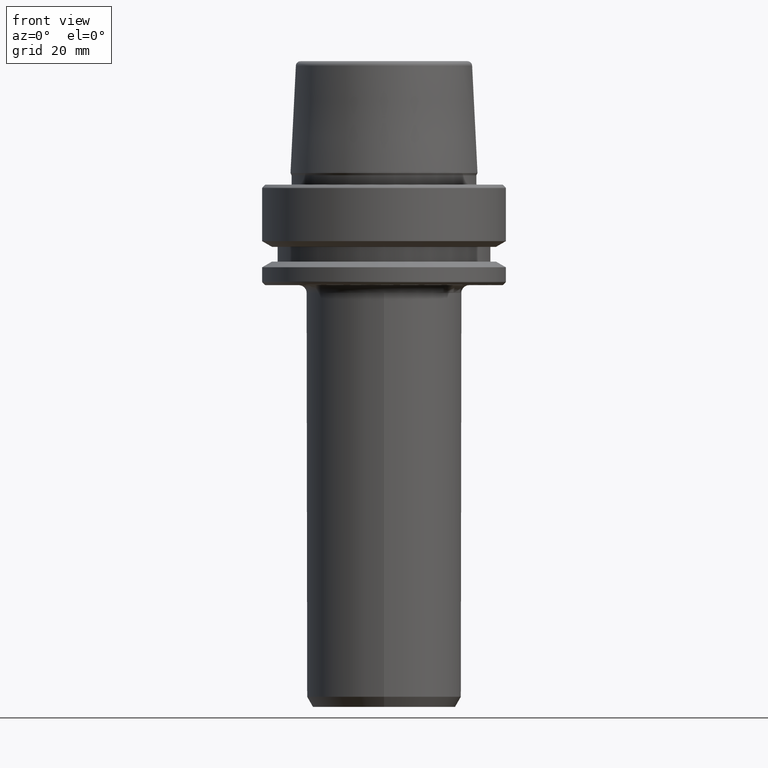
[diagram: clean part render]
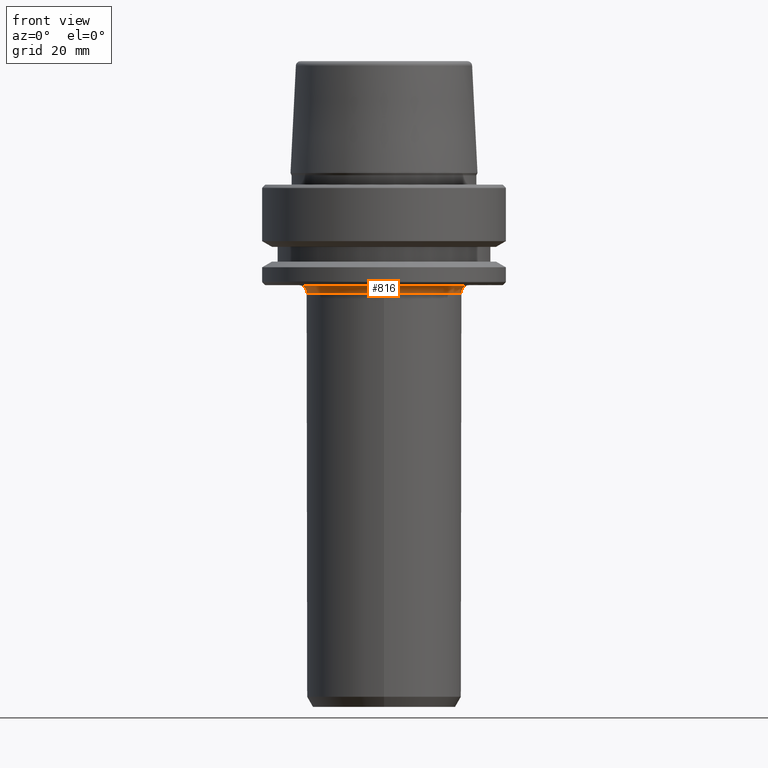
[diagram: same view with one face highlighted and labeled with its STEP entity id]
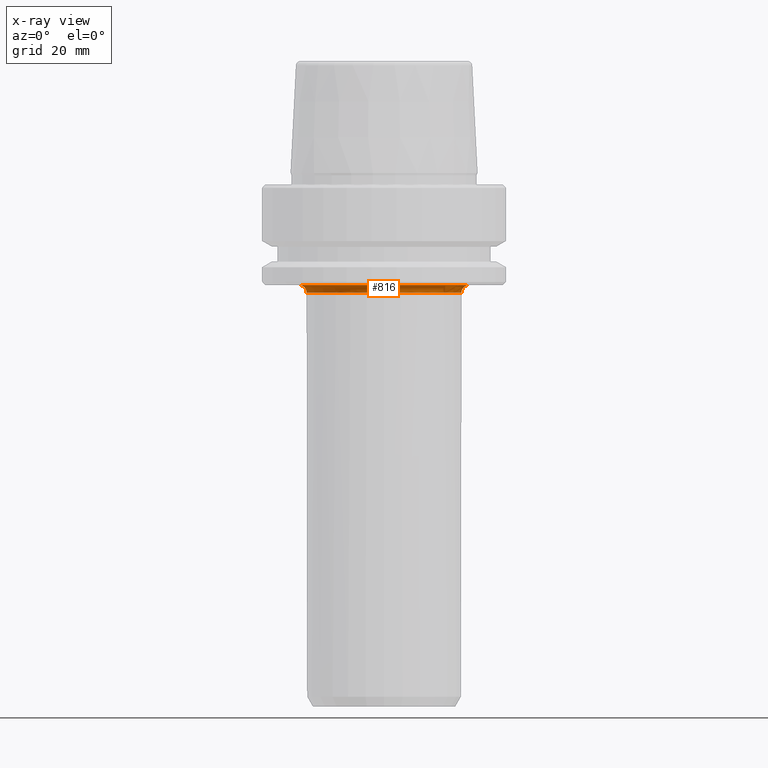
[diagram: x-ray of the same camera — body ghosted, the highlighted face saturated]
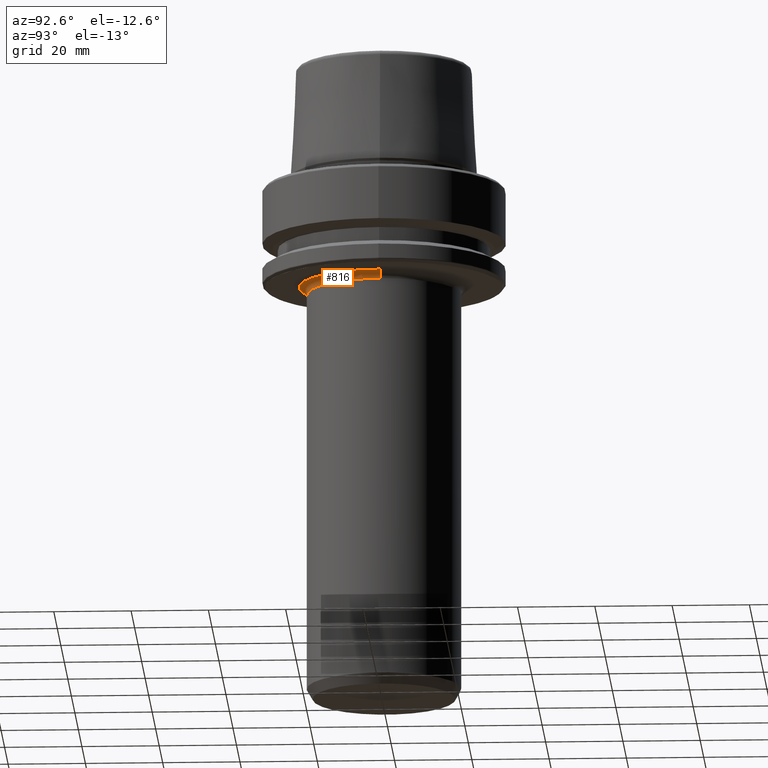
[diagram: same view with one face highlighted and labeled with its STEP entity id]
A machine part, front view. The second image highlights one B-rep face of the part: STEP entity #816.
The next image is the same camera in x-ray: the body ghosted, the highlighted face saturated — about 0% of this face is hidden behind the body in this view.
A second angle (auxiliary view) of the same face is appended — the face is thin or edge-on in the first view.
In plain terms, the highlighted toroidal blend (fillet) surface has major radius 22 mm and minor (blend) radius 2 mm.
Its self-contained STEP definition (entity closure, byte-faithful):
#22 = DIRECTION ( 'NONE',  ( 0.0000000000000000000, 0.0000000000000000000, -1.000000000000000000 ) ) ;
#85 = AXIS2_PLACEMENT_3D ( 'NONE', #158, #843, #258 ) ;
#101 = CARTESIAN_POINT ( 'NONE',  ( 2.449293598294706100E-015, -19.99999999999999600, -27.99999999999999600 ) ) ;
#124 = TOROIDAL_SURFACE ( 'NONE', #346, 22.00000000000000000, 2.000000000000000000 ) ;
#158 = CARTESIAN_POINT ( 'NONE',  ( 0.0000000000000000000, 4.494116694118690500E-017, -26.00000000000000700 ) ) ;
#228 = CIRCLE ( 'NONE', #456, 19.99999999999999600 ) ;
#258 = DIRECTION ( 'NONE',  ( 1.000000000000000000, 0.0000000000000000000, 0.0000000000000000000 ) ) ;
#260 = VERTEX_POINT ( 'NONE', #101 ) ;
#268 = DIRECTION ( 'NONE',  ( 1.000000000000000000, 0.0000000000000000000, 0.0000000000000000000 ) ) ;
#314 = AXIS2_PLACEMENT_3D ( 'NONE', #1187, #632, #488 ) ;
#343 = AXIS2_PLACEMENT_3D ( 'NONE', #1158, #22, #758 ) ;
#346 = AXIS2_PLACEMENT_3D ( 'NONE', #542, #478, #268 ) ;
#380 = EDGE_CURVE ( 'NONE', #918, #1060, #474, .T. ) ;
#426 = CARTESIAN_POINT ( 'NONE',  ( 22.00000000000000000, 4.494116694118690500E-017, -26.00000000000000400 ) ) ;
#456 = AXIS2_PLACEMENT_3D ( 'NONE', #549, #1185, #667 ) ;
#474 = CIRCLE ( 'NONE', #828, 2.000000000000001800 ) ;
#478 = DIRECTION ( 'NONE',  ( -0.0000000000000000000, -0.0000000000000000000, 1.000000000000000000 ) ) ;
#488 = DIRECTION ( 'NONE',  ( -1.000000000000000000, 1.224646799147351500E-016, 0.0000000000000000000 ) ) ;
#540 = CARTESIAN_POINT ( 'NONE',  ( 22.00000000000000000, 4.494116694118690500E-017, -27.99999999999999600 ) ) ;
#542 = CARTESIAN_POINT ( 'NONE',  ( 0.0000000000000000000, 4.494116694118690500E-017, -27.99999999999999600 ) ) ;
#549 = CARTESIAN_POINT ( 'NONE',  ( 0.0000000000000000000, 4.494116694118690500E-017, -27.99999999999999600 ) ) ;
#632 = DIRECTION ( 'NONE',  ( 1.224646799147353200E-016, 1.000000000000000000, 0.0000000000000000000 ) ) ;
#667 = DIRECTION ( 'NONE',  ( 1.000000000000000000, 0.0000000000000000000, 0.0000000000000000000 ) ) ;
#723 = DIRECTION ( 'NONE',  ( 0.0000000000000000000, 0.0000000000000000000, -1.000000000000000000 ) ) ;
#740 = FACE_OUTER_BOUND ( 'NONE', #1256, .T. ) ;
#758 = DIRECTION ( 'NONE',  ( 1.000000000000000000, 0.0000000000000000000, 0.0000000000000000000 ) ) ;
#816 = ADVANCED_FACE ( 'NONE', ( #740 ), #124, .F. ) ;
#828 = AXIS2_PLACEMENT_3D ( 'NONE', #540, #835, #723 ) ;
#835 = DIRECTION ( 'NONE',  ( 0.0000000000000000000, -1.000000000000000000, 0.0000000000000000000 ) ) ;
#843 = DIRECTION ( 'NONE',  ( -0.0000000000000000000, -0.0000000000000000000, 1.000000000000000000 ) ) ;
#846 = CARTESIAN_POINT ( 'NONE',  ( -19.99999999999999600, 2.616699445150628500E-015, -27.99999999999999600 ) ) ;
#847 = EDGE_CURVE ( 'NONE', #260, #849, #1133, .T. ) ;
#849 = VERTEX_POINT ( 'NONE', #846 ) ;
#852 = ORIENTED_EDGE ( 'NONE', *, *, #988, .T. ) ;
#866 = EDGE_CURVE ( 'NONE', #952, #918, #1164, .T. ) ;
#902 = CARTESIAN_POINT ( 'NONE',  ( -22.00000000000000000, 2.739164125065363600E-015, -26.00000000000000400 ) ) ;
#918 = VERTEX_POINT ( 'NONE', #426 ) ;
#923 = CARTESIAN_POINT ( 'NONE',  ( 19.99999999999999600, 4.494116694118690500E-017, -27.99999999999999600 ) ) ;
#952 = VERTEX_POINT ( 'NONE', #902 ) ;
#955 = ORIENTED_EDGE ( 'NONE', *, *, #1128, .F. ) ;
#988 = EDGE_CURVE ( 'NONE', #952, #849, #1105, .T. ) ;
#1060 = VERTEX_POINT ( 'NONE', #923 ) ;
#1105 = CIRCLE ( 'NONE', #314, 2.000000000000001800 ) ;
#1128 = EDGE_CURVE ( 'NONE', #1060, #260, #228, .T. ) ;
#1133 = CIRCLE ( 'NONE', #343, 19.99999999999999600 ) ;
#1158 = CARTESIAN_POINT ( 'NONE',  ( 0.0000000000000000000, 4.494116694118690500E-017, -27.99999999999999600 ) ) ;
#1164 = CIRCLE ( 'NONE', #85, 22.00000000000000000 ) ;
#1185 = DIRECTION ( 'NONE',  ( 0.0000000000000000000, 0.0000000000000000000, -1.000000000000000000 ) ) ;
#1187 = CARTESIAN_POINT ( 'NONE',  ( -22.00000000000000000, 2.739164125065363600E-015, -27.99999999999999600 ) ) ;
#1197 = ORIENTED_EDGE ( 'NONE', *, *, #380, .F. ) ;
#1230 = ORIENTED_EDGE ( 'NONE', *, *, #866, .F. ) ;
#1235 = ORIENTED_EDGE ( 'NONE', *, *, #847, .F. ) ;
#1256 = EDGE_LOOP ( 'NONE', ( #1230, #852, #1235, #955, #1197 ) ) ;